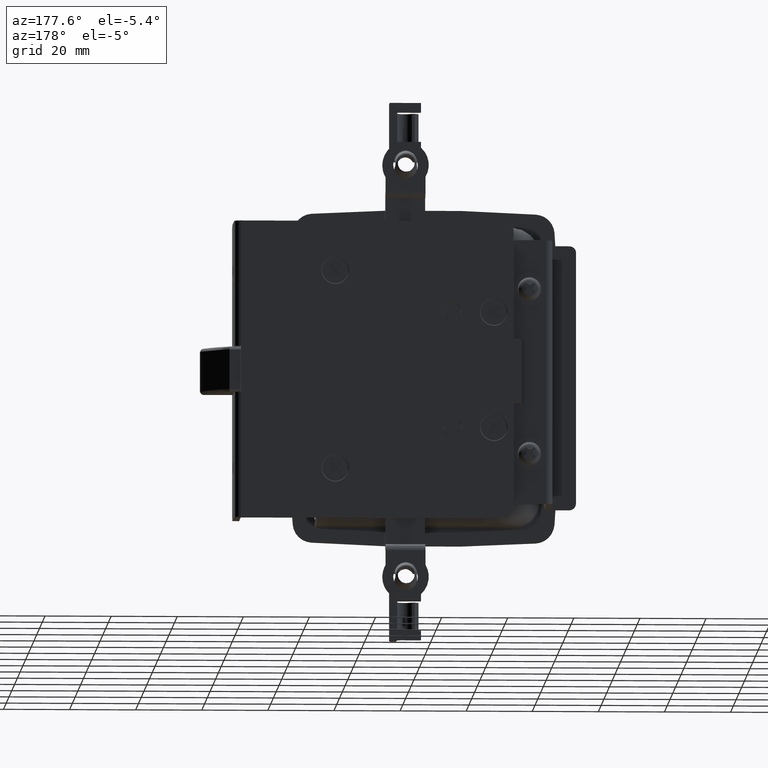
[diagram: clean part render]
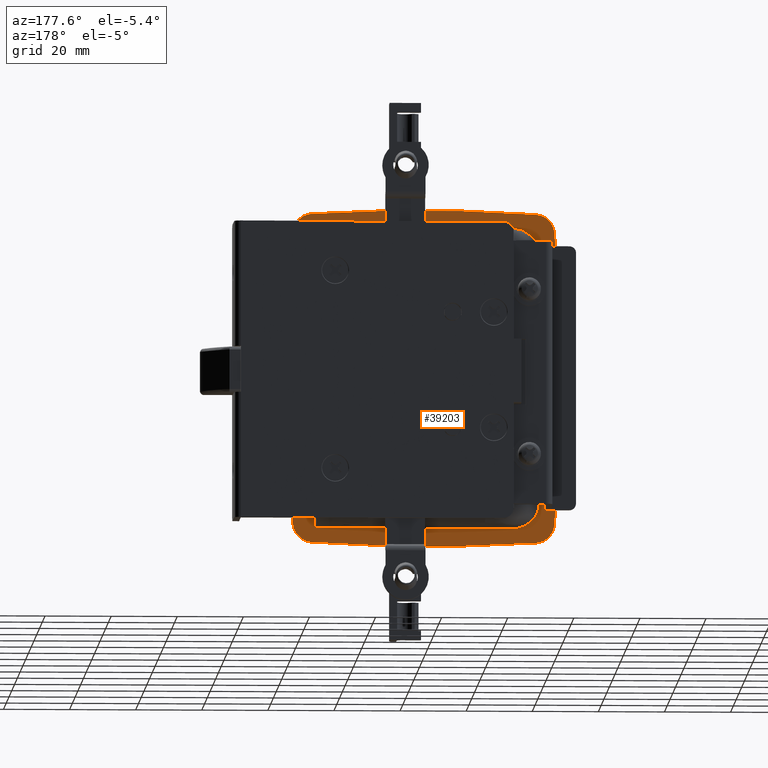
[diagram: same view with one face highlighted and labeled with its STEP entity id]
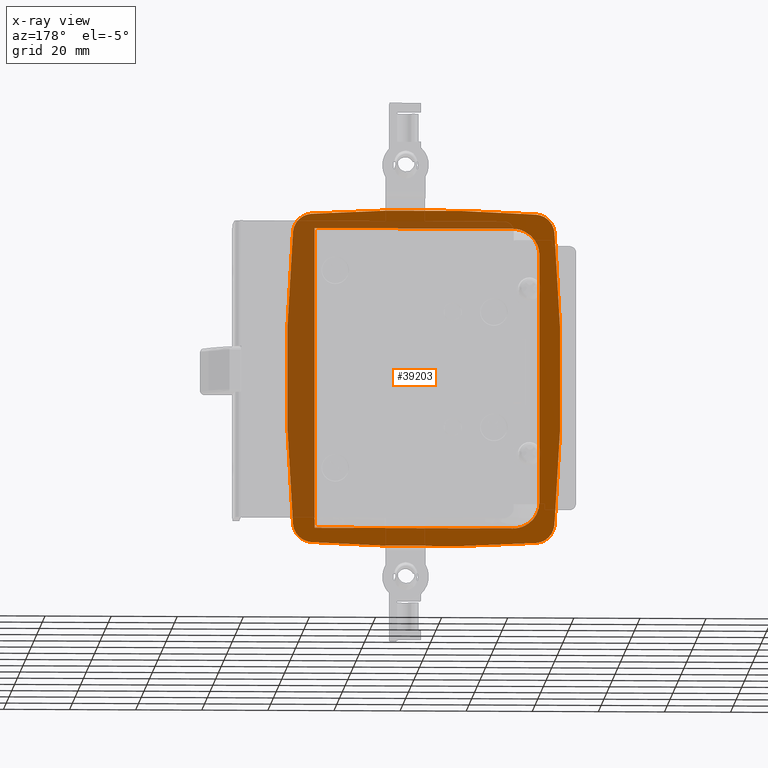
[diagram: x-ray of the same camera — body ghosted, the highlighted face saturated]
A machine part, auxiliary view. The second image highlights one B-rep face of the part: STEP entity #39203.
The next image is the same camera in x-ray: the body ghosted, the highlighted face saturated — about 41% of this face is hidden behind the body in this view.
In plain terms, the highlighted face is a freeform B-spline surface patch.
Its self-contained STEP definition (entity closure, byte-faithful):
#36491=CARTESIAN_POINT('',(35.000999999999998,-29.0,37.500000000000000));
#36492=VERTEX_POINT('',#36491);
#36493=CARTESIAN_POINT('',(26.999954014661000,-29.0,45.500000000000000));
#36494=VERTEX_POINT('',#36493);
#36495=CARTESIAN_POINT('',(35.000999999999998,-29.0,37.500000000000000));
#36496=CARTESIAN_POINT('',(35.001143845553123,-29.000000000000028,38.154550799726827));
#36497=CARTESIAN_POINT('',(34.855532282541120,-28.999999999999950,39.332665155946302));
#36498=CARTESIAN_POINT('',(34.323645208456881,-29.000000000000050,40.818849144565597));
#36499=CARTESIAN_POINT('',(33.595705759494940,-29.000000000000060,42.103703655888012));
#36500=CARTESIAN_POINT('',(32.691360553644600,-29.0,43.191906779987953));
#36501=CARTESIAN_POINT('',(31.624775287772241,-28.999999999999989,44.066998792348357));
#36502=CARTESIAN_POINT('',(30.495180678318999,-29.000000000000011,44.734557993669441));
#36503=CARTESIAN_POINT('',(28.996204339503372,-28.999999999999979,45.323326416211820));
#36504=CARTESIAN_POINT('',(27.752710479169551,-29.000000000000021,45.500376583031503));
#36505=CARTESIAN_POINT('',(26.999954014661000,-29.0,45.500000000000000));
#36506=B_SPLINE_CURVE_WITH_KNOTS('',3,(#36495,#36496,#36497,#36498,#36499,#36500,#36501,#36502,#36503,#36504,#36505),.UNSPECIFIED.,.F.,.U.,(4,1,1,1,1,1,1,1,4),(0.000000175926642,1.963632185492390,3.534580403889915,4.712781965732830,6.381824014762574,7.756413915527446,8.836432155372149,10.309204868208580,12.567388313871399),.UNSPECIFIED.);
#36507=EDGE_CURVE('',#36492,#36494,#36506,.T.);
#36559=CARTESIAN_POINT('',(26.999954014661000,-29.0,-45.499699999999997));
#36560=VERTEX_POINT('',#36559);
#36561=CARTESIAN_POINT('',(35.000999999999998,-29.0,-37.499699999999997));
#36562=VERTEX_POINT('',#36561);
#36563=CARTESIAN_POINT('',(26.999954014661000,-29.0,-45.499699999999997));
#36564=CARTESIAN_POINT('',(27.556305145680479,-29.000000000000011,-45.499811511765543));
#36565=CARTESIAN_POINT('',(28.832712534684159,-28.999999999999989,-45.366325204204713));
#36566=CARTESIAN_POINT('',(30.480847142489878,-29.0,-44.776910314488788));
#36567=CARTESIAN_POINT('',(31.812888903703531,-29.000000000000028,-43.933178130476698));
#36568=CARTESIAN_POINT('',(32.771698974751288,-28.999999999999829,-43.085499715744703));
#36569=CARTESIAN_POINT('',(33.716149055971698,-29.000000000000028,-41.949350637978391));
#36570=CARTESIAN_POINT('',(34.415720472694382,-28.999999999999730,-40.640773033599480));
#36571=CARTESIAN_POINT('',(34.891953923834500,-29.000000000000650,-39.070546734157340));
#36572=CARTESIAN_POINT('',(35.001100306263261,-28.999999999999350,-38.088796687549163));
#36573=CARTESIAN_POINT('',(35.000999999999998,-29.0,-37.499699999999997));
#36574=B_SPLINE_CURVE_WITH_KNOTS('',3,(#36563,#36564,#36565,#36566,#36567,#36568,#36569,#36570,#36571,#36572,#36573),.UNSPECIFIED.,.F.,.U.,(4,1,1,1,1,1,1,1,4),(0.000000175947406,1.669076905886884,3.829125251766932,5.203720810539627,6.381816175945271,7.658205424986733,9.621896983292510,10.800104125494711,12.567372876165690),.UNSPECIFIED.);
#36575=EDGE_CURVE('',#36560,#36562,#36574,.T.);
#36781=CARTESIAN_POINT('',(35.000999999999998,-29.0,-29.0));
#36782=VERTEX_POINT('',#36781);
#36981=CARTESIAN_POINT('',(35.000999999999998,-29.0,29.0));
#36982=VERTEX_POINT('',#36981);
#38621=CARTESIAN_POINT('',(35.000999999999998,-29.0,-29.0));
#38622=CARTESIAN_POINT('',(35.000999999999998,-29.0,29.0));
#38623=QUASI_UNIFORM_CURVE('',1,(#38621,#38622),.UNSPECIFIED.,.F.,.U.);
#38624=EDGE_CURVE('',#36782,#36982,#38623,.T.);
#38764=CARTESIAN_POINT('',(-33.0,-29.0,-42.999699999999997));
#38765=VERTEX_POINT('',#38764);
#38795=CARTESIAN_POINT('',(-33.0,-29.0,43.0));
#38796=VERTEX_POINT('',#38795);
#38857=CARTESIAN_POINT('',(-33.0,-29.0,-42.999699999999997));
#38858=CARTESIAN_POINT('',(-33.0,-29.0,43.0));
#38859=QUASI_UNIFORM_CURVE('',1,(#38857,#38858),.UNSPECIFIED.,.F.,.U.);
#38860=EDGE_CURVE('',#38765,#38796,#38859,.T.);
#38895=CARTESIAN_POINT('',(-33.990359156688399,-29.0,-49.843249430801798));
#38896=VERTEX_POINT('',#38895);
#38903=CARTESIAN_POINT('',(-39.559566880800162,-29.0,-44.380797666738353));
#38904=VERTEX_POINT('',#38903);
#38910=CARTESIAN_POINT('',(-39.559566880800162,-29.0,-44.380797666738353));
#38911=CARTESIAN_POINT('',(-39.507723908318830,-28.999999999999989,-44.975686108349969));
#38912=CARTESIAN_POINT('',(-39.239908902309622,-29.000000000000011,-46.084259345634123));
#38913=CARTESIAN_POINT('',(-38.443668149596199,-28.999999999999879,-47.479393337691917));
#38914=CARTESIAN_POINT('',(-37.547025244962583,-29.000000000000082,-48.408700866271971));
#38915=CARTESIAN_POINT('',(-36.659833831663292,-29.000000000000131,-49.035817209598903));
#38916=CARTESIAN_POINT('',(-35.546637711006738,-28.999999999999812,-49.588257708585921));
#38917=CARTESIAN_POINT('',(-34.608224774168882,-29.000000000000099,-49.801505557756052));
#38918=CARTESIAN_POINT('',(-33.990359156688399,-29.0,-49.843249430801798));
#38919=B_SPLINE_CURVE_WITH_KNOTS('',3,(#38910,#38911,#38912,#38913,#38914,#38915,#38916,#38917,#38918),.UNSPECIFIED.,.F.,.U.,(4,1,1,1,1,1,4),(0.000000143149256,1.791339691621571,3.383652829404163,4.776868793238968,5.639388800083126,6.634593604939218,8.492275714656945),.UNSPECIFIED.);
#38920=EDGE_CURVE('',#38904,#38896,#38919,.T.);
#38939=CARTESIAN_POINT('',(-39.559566880800162,-29.0,44.380797666738253));
#38940=VERTEX_POINT('',#38939);
#38947=CARTESIAN_POINT('',(-33.990359156688648,-29.0,49.843249430801798));
#38948=VERTEX_POINT('',#38947);
#38954=CARTESIAN_POINT('',(-33.990359156688648,-29.0,49.843249430801798));
#38955=CARTESIAN_POINT('',(-34.453702898673093,-29.000000000000021,49.811747057135769));
#38956=CARTESIAN_POINT('',(-35.438699843239363,-29.0,49.628266826119010));
#38957=CARTESIAN_POINT('',(-36.896922048399666,-28.999999999999989,48.954487159479747));
#38958=CARTESIAN_POINT('',(-38.129690129236529,-29.000000000000028,47.884319601957223));
#38959=CARTESIAN_POINT('',(-38.966113849220022,-28.999999999999989,46.621100180318059));
#38960=CARTESIAN_POINT('',(-39.402740168648087,-29.0,45.454851069707289));
#38961=CARTESIAN_POINT('',(-39.530631335631490,-29.000000000000011,44.711258704298608));
#38962=CARTESIAN_POINT('',(-39.559566880800162,-29.0,44.380797666738253));
#38963=B_SPLINE_CURVE_WITH_KNOTS('',3,(#38954,#38955,#38956,#38957,#38958,#38959,#38960,#38961,#38962),.UNSPECIFIED.,.F.,.U.,(4,1,1,1,1,1,4),(0.000000143147091,1.393256016788026,2.985586566027368,4.776868793239144,6.236514069533577,7.497091690865955,8.492275714656806),.UNSPECIFIED.);
#38964=EDGE_CURVE('',#38948,#38940,#38963,.T.);
#38985=CARTESIAN_POINT('',(33.990322708088136,-29.0,49.843388190968803));
#38986=VERTEX_POINT('',#38985);
#38992=CARTESIAN_POINT('',(33.990322708088136,-29.0,49.843388190968803));
#38993=CARTESIAN_POINT('',(-0.000022951741723,-29.0,52.159363214274229));
#38994=CARTESIAN_POINT('',(-33.990359156688648,-29.0,49.843249430801798));
#39002=(BOUNDED_CURVE()B_SPLINE_CURVE(2,(#38992,#38993,#38994),.UNSPECIFIED.,.F.,.U.)CURVE()GEOMETRIC_REPRESENTATION_ITEM()QUASI_UNIFORM_CURVE()RATIONAL_B_SPLINE_CURVE((1.0,0.997686637623849,1.0))REPRESENTATION_ITEM(''));
#39003=EDGE_CURVE('',#38986,#38948,#39002,.T.);
#39024=CARTESIAN_POINT('',(39.559554726165352,-29.0,44.380936398739152));
#39025=VERTEX_POINT('',#39024);
#39031=CARTESIAN_POINT('',(39.559554726165352,-29.0,44.380936398739152));
#39032=CARTESIAN_POINT('',(39.500244719007419,-28.999999999999961,45.064033064728292));
#39033=CARTESIAN_POINT('',(39.252549972126737,-29.000000000000021,45.996577545713777));
#39034=CARTESIAN_POINT('',(38.618924662737037,-28.999999999999979,47.165799146705702));
#39035=CARTESIAN_POINT('',(37.886622970759440,-29.000000000000089,48.115865315458137));
#39036=CARTESIAN_POINT('',(36.846424205792800,-28.999999999999918,48.959959059592627));
#39037=CARTESIAN_POINT('',(35.481576406640691,-29.000000000000160,49.609038430120037));
#39038=CARTESIAN_POINT('',(34.541957110488887,-28.999999999999851,49.806012654929283));
#39039=CARTESIAN_POINT('',(33.990322708088136,-29.0,49.843388190968803));
#39040=B_SPLINE_CURVE_WITH_KNOTS('',3,(#39031,#39032,#39033,#39034,#39035,#39036,#39037,#39038,#39039),.UNSPECIFIED.,.F.,.U.,(4,1,1,1,1,1,4),(0.000000143116301,2.056729376458827,2.852901149945503,3.980795327469801,5.639403974556614,6.833657467003455,8.492298565826511),.UNSPECIFIED.);
#39041=EDGE_CURVE('',#39025,#38986,#39040,.T.);
#39060=CARTESIAN_POINT('',(39.559554726165302,-29.0,-44.380936398739301));
#39061=VERTEX_POINT('',#39060);
#39068=CARTESIAN_POINT('',(33.990322708088250,-29.0,-49.843388190968803));
#39069=VERTEX_POINT('',#39068);
#39075=CARTESIAN_POINT('',(33.990322708088250,-29.0,-49.843388190968803));
#39076=CARTESIAN_POINT('',(34.497817352864338,-29.000000000000039,-49.808938734241643));
#39077=CARTESIAN_POINT('',(35.438226552920078,-28.999999999999979,-49.622798402810581));
#39078=CARTESIAN_POINT('',(36.650128093634997,-28.999999999999972,-49.062698968330423));
#39079=CARTESIAN_POINT('',(37.524729857060777,-28.999999999999972,-48.414814975896292));
#39080=CARTESIAN_POINT('',(38.236607251233657,-29.000000000000220,-47.684971920941742));
#39081=CARTESIAN_POINT('',(38.913765158375533,-28.999999999999730,-46.721881889810447));
#39082=CARTESIAN_POINT('',(39.384015133574188,-29.000000000000131,-45.564385600067183));
#39083=CARTESIAN_POINT('',(39.530603944354638,-29.000000000000021,-44.711393156941263));
#39084=CARTESIAN_POINT('',(39.559554726165302,-29.0,-44.380936398739301));
#39085=B_SPLINE_CURVE_WITH_KNOTS('',3,(#39075,#39076,#39077,#39078,#39079,#39080,#39081,#39082,#39083,#39084),.UNSPECIFIED.,.F.,.U.,(4,1,1,1,1,1,1,4),(0.000000143125334,1.525955068299691,2.852901149953528,3.980795327476536,4.776881646700067,5.904790496704268,7.497111864241545,8.492298565826111),.UNSPECIFIED.);
#39086=EDGE_CURVE('',#39069,#39061,#39085,.T.);
#39108=CARTESIAN_POINT('',(-33.990359156688449,-29.0,-49.843249430801649));
#39109=CARTESIAN_POINT('',(-0.000022951741654,-28.999999999999996,-52.159363214274222));
#39110=CARTESIAN_POINT('',(33.990322708088222,-29.0,-49.843388190968618));
#39118=(BOUNDED_CURVE()B_SPLINE_CURVE(2,(#39108,#39109,#39110),.UNSPECIFIED.,.F.,.U.)CURVE()GEOMETRIC_REPRESENTATION_ITEM()QUASI_UNIFORM_CURVE()RATIONAL_B_SPLINE_CURVE((1.0,0.997686637623849,1.0))REPRESENTATION_ITEM(''));
#39119=EDGE_CURVE('',#38896,#39069,#39118,.T.);
#39124=CARTESIAN_POINT('',(-45.645849839129802,-29.0,-56.094899801158533));
#39125=CARTESIAN_POINT('',(45.645852065363307,-29.0,-56.094899801158533));
#39126=CARTESIAN_POINT('',(-45.645849839129802,-29.0,56.094902537011812));
#39127=CARTESIAN_POINT('',(45.645852065363307,-29.0,56.094902537011812));
#39128=B_SPLINE_SURFACE_WITH_KNOTS('',1,1,((#39124,#39126),(#39125,#39127)),.UNSPECIFIED.,.F.,.F.,.U.,(2,2),(2,2),(0.0,91.291701904493124),(0.0,112.189802338170300),.UNSPECIFIED.);
#39129=ORIENTED_EDGE('',*,*,#39119,.F.);
#39130=ORIENTED_EDGE('',*,*,#38920,.F.);
#39131=CARTESIAN_POINT('',(-39.559566880800162,-29.0,44.380797666738253));
#39132=CARTESIAN_POINT('',(-43.447866165451771,-29.0,1.873501E-013));
#39133=CARTESIAN_POINT('',(-39.559566880800247,-29.0,-44.380797666738317));
#39141=(BOUNDED_CURVE()B_SPLINE_CURVE(2,(#39131,#39132,#39133),.UNSPECIFIED.,.F.,.U.)CURVE()GEOMETRIC_REPRESENTATION_ITEM()QUASI_UNIFORM_CURVE()RATIONAL_B_SPLINE_CURVE((1.0,0.996184005665291,1.0))REPRESENTATION_ITEM(''));
#39142=EDGE_CURVE('',#38940,#38904,#39141,.T.);
#39143=ORIENTED_EDGE('',*,*,#39142,.F.);
#39144=ORIENTED_EDGE('',*,*,#38964,.F.);
#39145=ORIENTED_EDGE('',*,*,#39003,.F.);
#39146=ORIENTED_EDGE('',*,*,#39041,.F.);
#39147=CARTESIAN_POINT('',(39.559554726165402,-29.0,-44.380936398739301));
#39148=CARTESIAN_POINT('',(43.447878413384664,-29.000000000000004,4.510281E-013));
#39149=CARTESIAN_POINT('',(39.559554726165352,-29.0,44.380936398739152));
#39157=(BOUNDED_CURVE()B_SPLINE_CURVE(2,(#39147,#39148,#39149),.UNSPECIFIED.,.F.,.U.)CURVE()GEOMETRIC_REPRESENTATION_ITEM()QUASI_UNIFORM_CURVE()RATIONAL_B_SPLINE_CURVE((1.0,0.996183981762371,1.0))REPRESENTATION_ITEM(''));
#39158=EDGE_CURVE('',#39061,#39025,#39157,.T.);
#39159=ORIENTED_EDGE('',*,*,#39158,.F.);
#39160=ORIENTED_EDGE('',*,*,#39086,.F.);
#39161=EDGE_LOOP('',(#39129,#39130,#39143,#39144,#39145,#39146,#39159,#39160));
#39162=FACE_OUTER_BOUND('',#39161,.T.);
#39163=CARTESIAN_POINT('',(-33.0,-29.0,-45.499699999999997));
#39164=VERTEX_POINT('',#39163);
#39165=CARTESIAN_POINT('',(26.999954014661000,-29.0,-45.499699999999997));
#39166=CARTESIAN_POINT('',(-33.0,-29.0,-45.499699999999997));
#39167=QUASI_UNIFORM_CURVE('',1,(#39165,#39166),.UNSPECIFIED.,.F.,.U.);
#39168=EDGE_CURVE('',#36560,#39164,#39167,.T.);
#39169=ORIENTED_EDGE('',*,*,#39168,.F.);
#39170=ORIENTED_EDGE('',*,*,#36575,.T.);
#39171=CARTESIAN_POINT('',(35.000999999999998,-29.0,-37.499699999999997));
#39172=CARTESIAN_POINT('',(35.000999999999998,-29.0,-29.0));
#39173=QUASI_UNIFORM_CURVE('',1,(#39171,#39172),.UNSPECIFIED.,.F.,.U.);
#39174=EDGE_CURVE('',#36562,#36782,#39173,.T.);
#39175=ORIENTED_EDGE('',*,*,#39174,.T.);
#39176=ORIENTED_EDGE('',*,*,#38624,.T.);
#39177=CARTESIAN_POINT('',(35.000999999999998,-29.0,29.0));
#39178=CARTESIAN_POINT('',(35.000999999999998,-29.0,37.500000000000000));
#39179=QUASI_UNIFORM_CURVE('',1,(#39177,#39178),.UNSPECIFIED.,.F.,.U.);
#39180=EDGE_CURVE('',#36982,#36492,#39179,.T.);
#39181=ORIENTED_EDGE('',*,*,#39180,.T.);
#39182=ORIENTED_EDGE('',*,*,#36507,.T.);
#39183=CARTESIAN_POINT('',(-33.0,-29.0,45.500000000000000));
#39184=VERTEX_POINT('',#39183);
#39185=CARTESIAN_POINT('',(26.999954014661000,-29.0,45.500000000000000));
#39186=CARTESIAN_POINT('',(-33.0,-29.0,45.500000000000000));
#39187=QUASI_UNIFORM_CURVE('',1,(#39185,#39186),.UNSPECIFIED.,.F.,.U.);
#39188=EDGE_CURVE('',#36494,#39184,#39187,.T.);
#39189=ORIENTED_EDGE('',*,*,#39188,.T.);
#39190=CARTESIAN_POINT('',(-33.0,-29.0,43.0));
#39191=CARTESIAN_POINT('',(-33.0,-29.0,45.500000000000000));
#39192=QUASI_UNIFORM_CURVE('',1,(#39190,#39191),.UNSPECIFIED.,.F.,.U.);
#39193=EDGE_CURVE('',#38796,#39184,#39192,.T.);
#39194=ORIENTED_EDGE('',*,*,#39193,.F.);
#39195=ORIENTED_EDGE('',*,*,#38860,.F.);
#39196=CARTESIAN_POINT('',(-33.0,-29.0,-45.499699999999997));
#39197=CARTESIAN_POINT('',(-33.0,-29.0,-42.999699999999997));
#39198=QUASI_UNIFORM_CURVE('',1,(#39196,#39197),.UNSPECIFIED.,.F.,.U.);
#39199=EDGE_CURVE('',#39164,#38765,#39198,.T.);
#39200=ORIENTED_EDGE('',*,*,#39199,.F.);
#39201=EDGE_LOOP('',(#39169,#39170,#39175,#39176,#39181,#39182,#39189,#39194,#39195,#39200));
#39202=FACE_BOUND('',#39201,.T.);
#39203=ADVANCED_FACE('',(#39162,#39202),#39128,.F.);